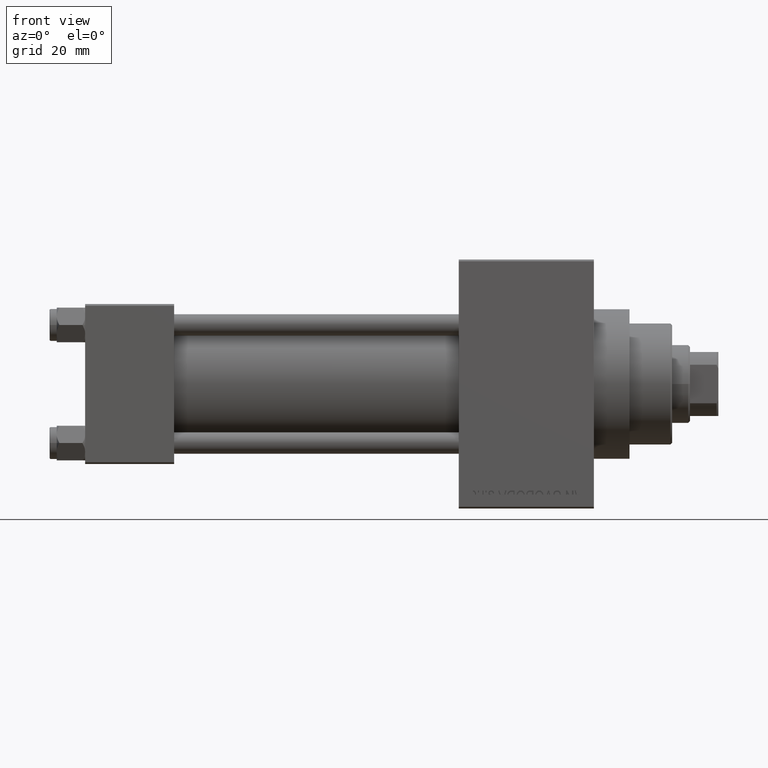
[diagram: clean part render]
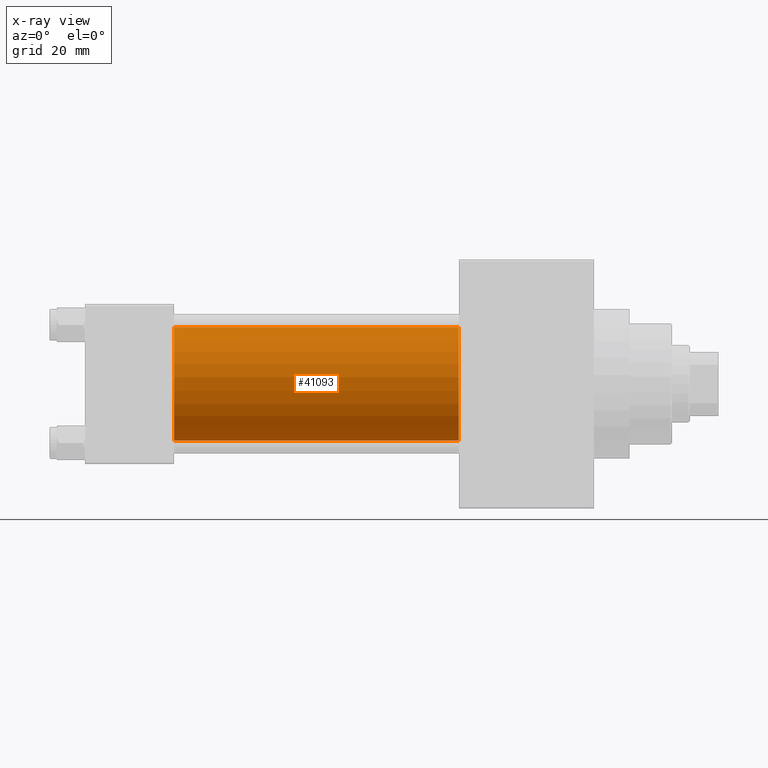
[diagram: x-ray — body ghosted, one internal face saturated and labeled with its STEP entity id]
A machine part, front view, then the same camera in x-ray: the body is ghosted and one INTERNAL B-rep face — a face not visible from any outside direction — is saturated and labeled: STEP entity #41093.
In plain terms, the highlighted cylindrical surface (partial cylindrical patch) has radius 16 mm, axis along (-1, -0, -0).
Its self-contained STEP definition (entity closure, byte-faithful):
#386 = CARTESIAN_POINT ( 'NONE',  ( 25.00000000000000000, -2.602085213965210642E-15, 0.000000000000000000 ) ) ;
#551 = CIRCLE ( 'NONE', #33423, 16.00000000000000000 ) ;
#631 = CIRCLE ( 'NONE', #41023, 16.00000000000000000 ) ;
#2423 = ORIENTED_EDGE ( 'NONE', *, *, #38942, .T. ) ;
#2837 = VERTEX_POINT ( 'NONE', #4806 ) ;
#4417 = EDGE_CURVE ( 'NONE', #2837, #37862, #631, .T. ) ;
#4806 = CARTESIAN_POINT ( 'NONE',  ( 105.0000000000000142, -2.602085213965210642E-15, 16.00000000000000000 ) ) ;
#5176 = DIRECTION ( 'NONE',  ( 0.000000000000000000, 0.000000000000000000, -1.000000000000000000 ) ) ;
#5599 = CARTESIAN_POINT ( 'NONE',  ( 105.0000000000000142, -2.602085213965210642E-15, 0.000000000000000000 ) ) ;
#12771 = CYLINDRICAL_SURFACE ( 'NONE', #37643, 16.00000000000000000 ) ;
#15534 = VERTEX_POINT ( 'NONE', #36935 ) ;
#17300 = CARTESIAN_POINT ( 'NONE',  ( 105.0000000000000142, -2.602085213965210642E-15, 16.00000000000000000 ) ) ;
#18358 = ORIENTED_EDGE ( 'NONE', *, *, #4417, .T. ) ;
#18895 = CARTESIAN_POINT ( 'NONE',  ( 105.0000000000000142, -6.426503353294456087E-16, -16.00000000000000000 ) ) ;
#19158 = EDGE_LOOP ( 'NONE', ( #18358, #2423, #44485, #45897 ) ) ;
#19626 = CARTESIAN_POINT ( 'NONE',  ( 25.00000000000000000, -2.602085213965210642E-15, 16.00000000000000000 ) ) ;
#20489 = LINE ( 'NONE', #18895, #38053 ) ;
#22668 = VECTOR ( 'NONE', #42119, 1000.000000000000000 ) ;
#23274 = DIRECTION ( 'NONE',  ( -1.000000000000000000, -0.000000000000000000, -0.000000000000000000 ) ) ;
#26429 = CARTESIAN_POINT ( 'NONE',  ( 105.0000000000000142, -2.602085213965210642E-15, 0.000000000000000000 ) ) ;
#29761 = DIRECTION ( 'NONE',  ( 1.000000000000000000, 0.000000000000000000, 0.000000000000000000 ) ) ;
#30990 = CARTESIAN_POINT ( 'NONE',  ( 105.0000000000000142, -6.426503353294456087E-16, -16.00000000000000000 ) ) ;
#33423 = AXIS2_PLACEMENT_3D ( 'NONE', #386, #44044, #47160 ) ;
#34713 = DIRECTION ( 'NONE',  ( 0.000000000000000000, 0.000000000000000000, 1.000000000000000000 ) ) ;
#35674 = LINE ( 'NONE', #17300, #22668 ) ;
#36935 = CARTESIAN_POINT ( 'NONE',  ( 25.00000000000000000, -6.426503353294456087E-16, -16.00000000000000000 ) ) ;
#37643 = AXIS2_PLACEMENT_3D ( 'NONE', #5599, #23274, #34713 ) ;
#37862 = VERTEX_POINT ( 'NONE', #30990 ) ;
#38053 = VECTOR ( 'NONE', #44880, 1000.000000000000000 ) ;
#38179 = EDGE_CURVE ( 'NONE', #41445, #15534, #551, .T. ) ;
#38443 = EDGE_CURVE ( 'NONE', #2837, #41445, #35674, .T. ) ;
#38942 = EDGE_CURVE ( 'NONE', #37862, #15534, #20489, .T. ) ;
#41023 = AXIS2_PLACEMENT_3D ( 'NONE', #26429, #29761, #5176 ) ;
#41093 = ADVANCED_FACE ( 'NONE', ( #41626 ), #12771, .F. ) ;
#41445 = VERTEX_POINT ( 'NONE', #19626 ) ;
#41626 = FACE_OUTER_BOUND ( 'NONE', #19158, .T. ) ;
#42119 = DIRECTION ( 'NONE',  ( -1.000000000000000000, -0.000000000000000000, -0.000000000000000000 ) ) ;
#44044 = DIRECTION ( 'NONE',  ( 1.000000000000000000, 0.000000000000000000, 0.000000000000000000 ) ) ;
#44485 = ORIENTED_EDGE ( 'NONE', *, *, #38179, .F. ) ;
#44880 = DIRECTION ( 'NONE',  ( -1.000000000000000000, -0.000000000000000000, -0.000000000000000000 ) ) ;
#45897 = ORIENTED_EDGE ( 'NONE', *, *, #38443, .F. ) ;
#47160 = DIRECTION ( 'NONE',  ( 0.000000000000000000, 0.000000000000000000, -1.000000000000000000 ) ) ;